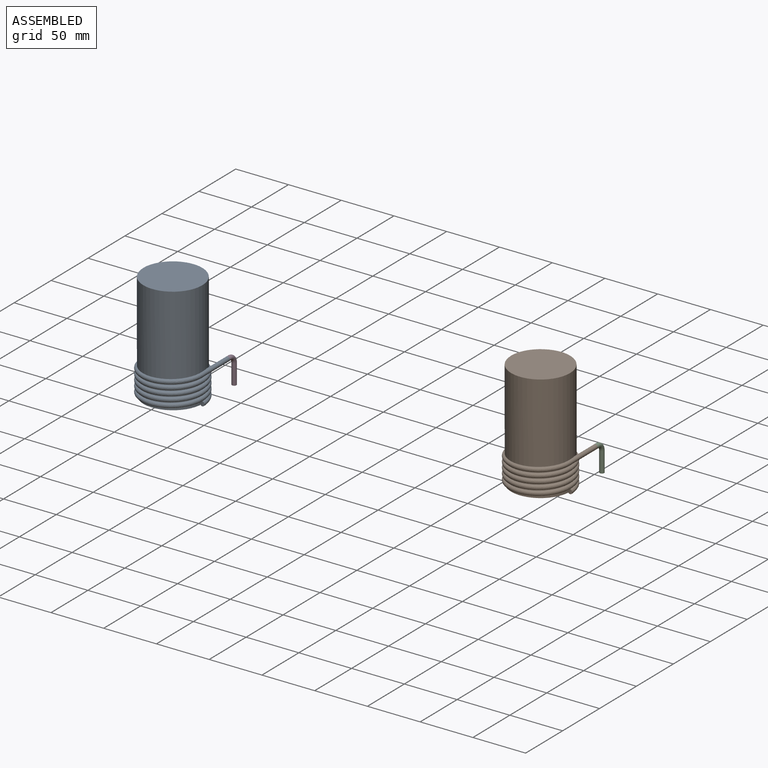
[diagram: assembled view]
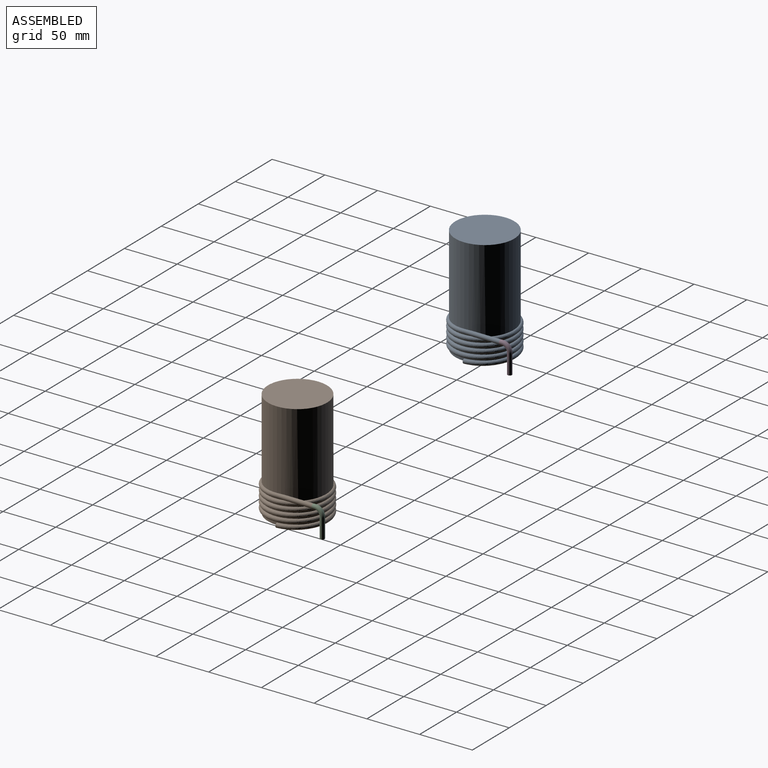
[diagram: assembled view, second angle]
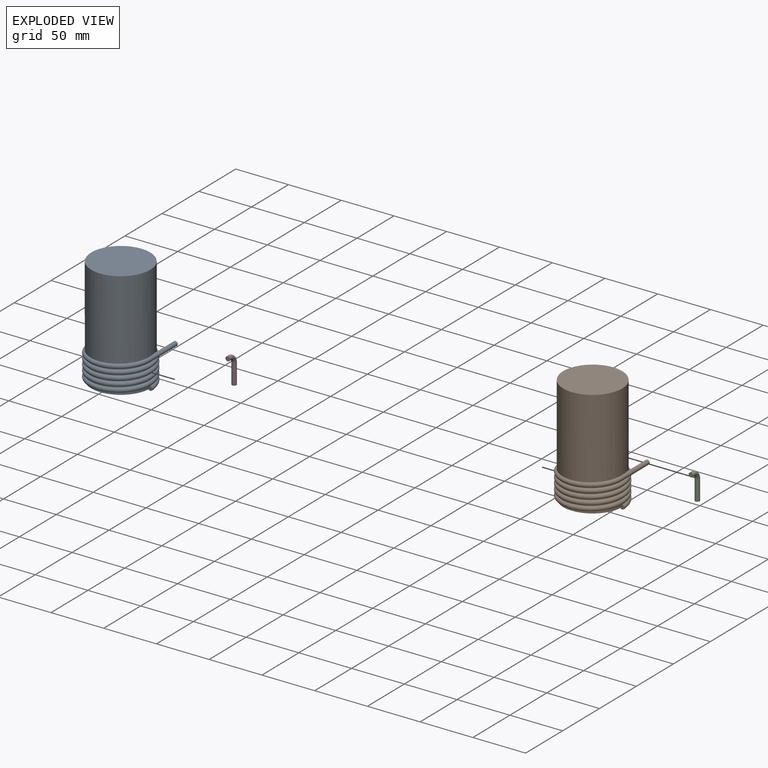
[diagram: exploded view]
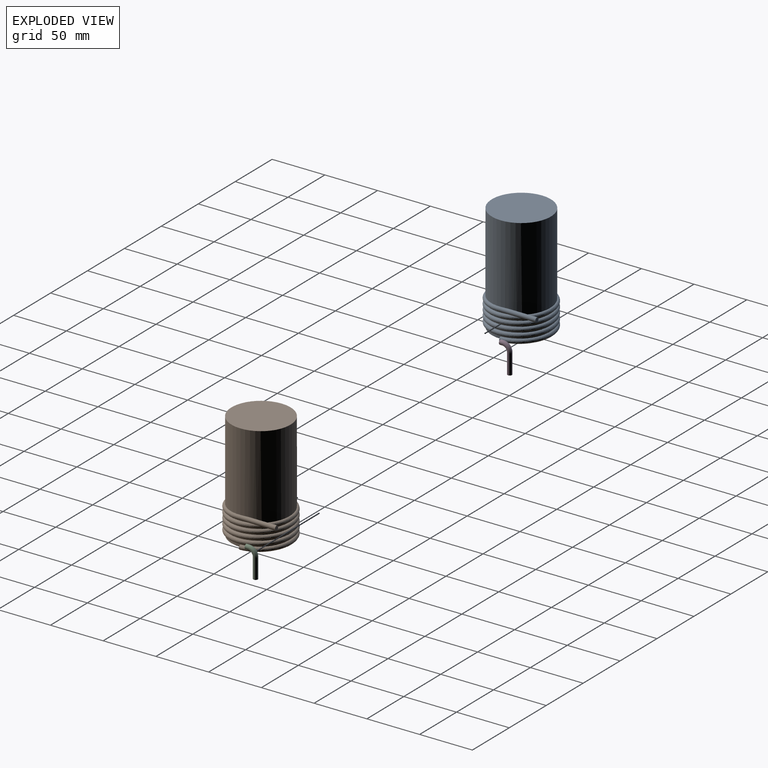
[diagram: exploded view, second angle]
ASSEMBLY  parts=4 mates=2
PART A: 12 faces, bbox 62.3x66.6x106 mm
  f0: plane 4.86x4.86mm, normal (0,-1,0), area 10.7mm2, adj f1,f7,f8
  f1: bspline ~60.11x60.08mm, area 6266.2mm2, adj f0,f2,f3,f4,f5,f6,f7,f8
  f2: cylinder r=27.94mm len=55.88mm, axis (0,0,-1), area 144.1mm2, adj f1,f3,f7
  f3: cylinder r=27.94mm len=55.88mm, axis (0,0,-1), area 144mm2, adj f1,f2,f4
  f4: cylinder r=27.94mm len=55.88mm, axis (0,0,-1), area 143.7mm2, adj f1,f3,f5
  f5: cylinder r=27.94mm len=55.88mm, axis (0,0,-1), area 143.6mm2, adj f1,f4,f6
  f6: cylinder r=27.94mm len=79.15mm, axis (0,0,-1), area 13408.8mm2, adj f1,f5,f9,f11
  f7: cylinder r=27.94mm len=55.88mm, axis (0,0,-1), area 150.4mm2, adj f0,f1,f2,f8
  f8: plane 58.11x56.41mm, normal (0,0,-1), area 2333.3mm2, adj f0,f1,f7
  f9: cylinder r=2.13mm len=34.29mm, axis (0,-1,0), area 404mm2, adj f1,f6,f10
  f10: plane 4.26x4.26mm, normal (0,1,0), area 14.3mm2, adj f9
  f11: plane 55.88x55.88mm, normal (0,0,1), area 2452.5mm2, adj f6
PART B: same geometry as A
PART C: 5 faces, bbox 4.3x11.6x28.2 mm
  f0: plane 4.26x4.26mm, normal (0,0,-1), area 14.3mm2, adj f2
  f1: plane 4.26x4.26mm, normal (0,-1,0), area 14.3mm2, adj f4
  f2: cylinder r=2.13mm len=19.05mm, axis (0,0,1), area 255mm2, adj f0,f3
  f3: torus R=6.35mm, axis (1,0,0), area 133.5mm2, adj f2,f4
  f4: cylinder r=2.13mm len=4.26mm, axis (0,-1,0), area 33.1mm2, adj f1,f3
PART D: same geometry as C
PLACE A t=(-132.39,4.1,15.4)mm
PLACE B t=(185.02,48.73,8)mm
PLACE C t=(212.96,48.73,8)mm
PLACE D t=(-104.45,4.1,15.4)mm
MATE fastened A.f9 <-> D.f4  axis (0,1,0) through (-104.45,38.39,40.8)mm
MATE fastened C.f4 <-> B.f9  axis (0,-1,0) through (212.96,83.02,33.4)mm
